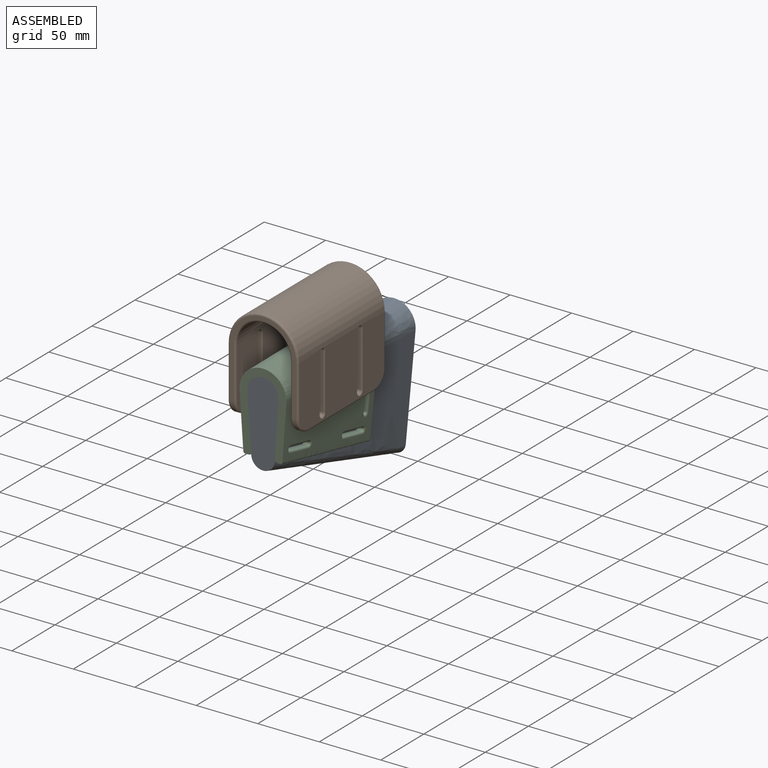
[diagram: assembled view]
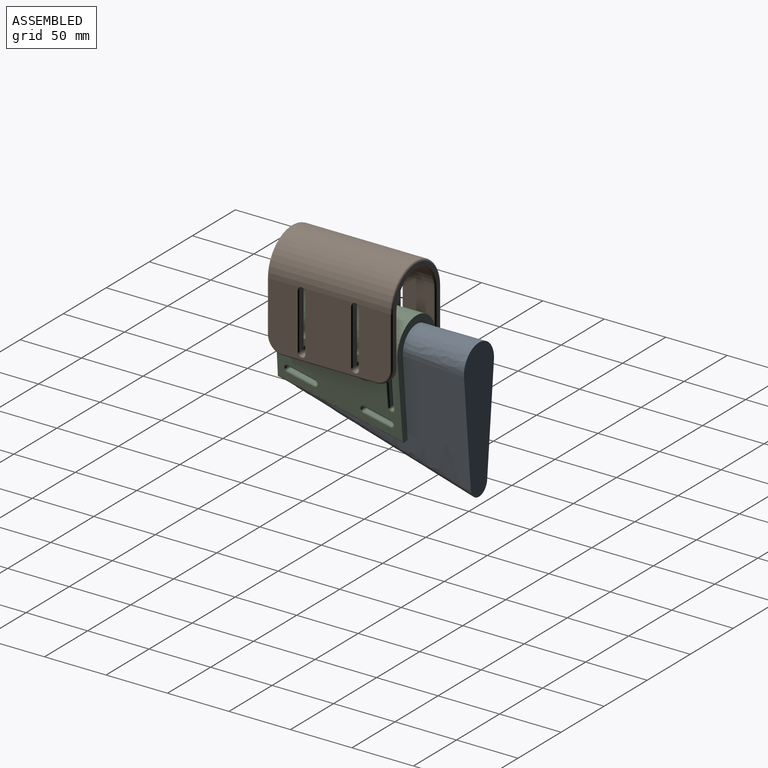
[diagram: assembled view, second angle]
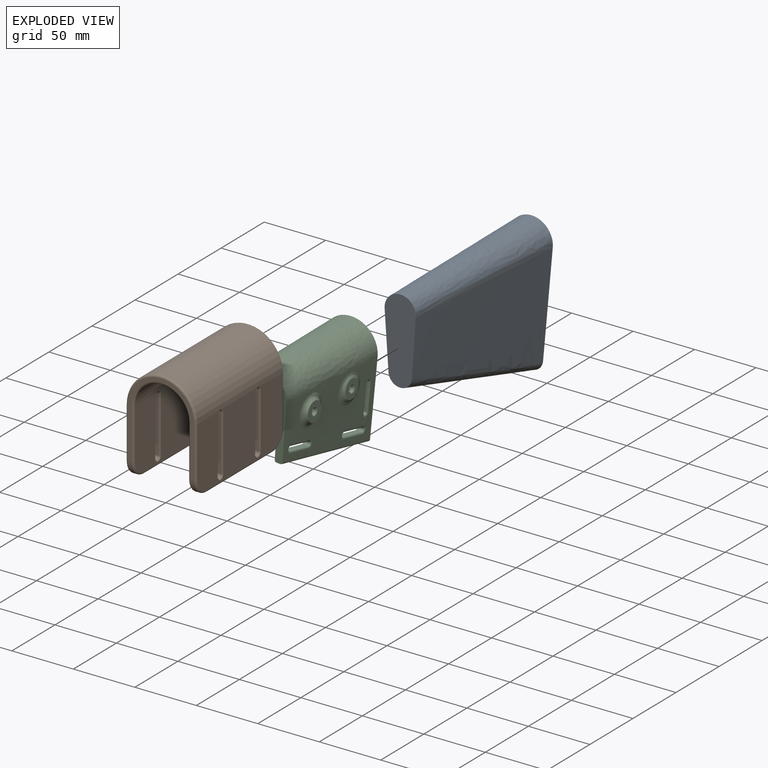
[diagram: exploded view]
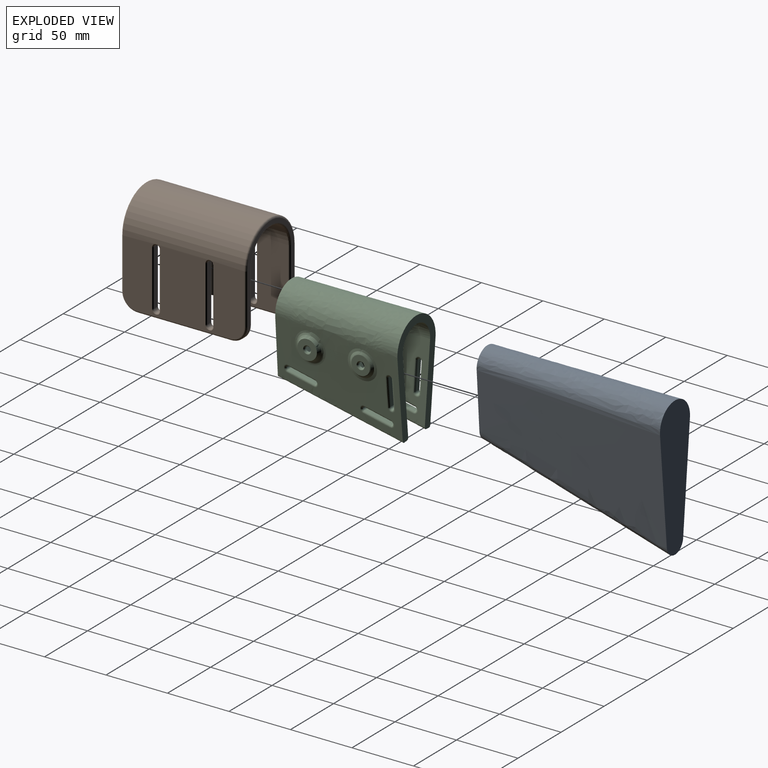
[diagram: exploded view, second angle]
ASSEMBLY  parts=3 mates=2
PART A: 3 faces, bbox 36.7x154.1x115.1 mm
  f0: plane 114.36x36mm, normal (0,1,0), area 2962mm2, adj f2
  f1: plane 70.31x27.18mm, normal (0,-1,0), area 1428.5mm2, adj f2
  f2: bspline ~152.4x113.35mm, area 32182.1mm2, adj f0,f1
PART B: 102 faces, bbox 61.9x103.7x86 mm
  f0: plane 98.43x52.39mm, normal (1,0,0), area 4456.8mm2, adj f1,f43,f45,f47,f49,f51,f54,f55
  f1: cylinder r=28.57mm len=98.43mm, axis (0,1,0), area 8826.8mm2, adj f0,f2,f42,f53,f59,f71,f87,f99
  f2: plane 98.43x52.39mm, normal (-1,0,0), area 4456.8mm2, adj f1,f44,f46,f48,f50,f52,f84,f85
  f3: plane 76.2x3.18mm, normal (0,0,-1), area 241.9mm2, adj f26,f28,f33,f48
  f4: plane 98.43x52.39mm, normal (1,0,0), area 4456.8mm2, adj f5,f30,f31,f33,f35,f37,f78,f79
  f5: cylinder r=22.23mm len=98.43mm, axis (0,1,0), area 6863.8mm2, adj f4,f6,f32,f39,f63,f75,f83,f95
  f6: plane 98.43x52.39mm, normal (-1,0,0), area 4456.8mm2, adj f5,f34,f36,f38,f40,f41,f60,f61
  f7: plane 76.2x3.18mm, normal (0,0,-1), area 241.9mm2, adj f27,f29,f38,f47
  f8: plane 68.26x53.98mm, normal (0,-1,0), area 515.4mm2, adj f28,f29,f37,f39,f41,f51,f52,f53
  f9: plane 68.26x53.98mm, normal (0,1,0), area 515.4mm2, adj f26,f27,f30,f32,f34,f42,f43,f44
  f10: plane 45.15x4.83mm, normal (0,-1,0), area 217.9mm2, adj f11,f13,f67,f72
  f11: cylinder r=2.48mm len=4.95mm, axis (1,0,0), area 37.5mm2, adj f10,f12,f66,f74
  f12: plane 45.15x4.83mm, normal (0,1,0), area 217.9mm2, adj f11,f13,f68,f76
  f13: cylinder r=2.48mm len=4.95mm, axis (1,0,0), area 37.5mm2, adj f10,f12,f69,f70,f71,f73,f75,f77
  f14: plane 45.15x4.83mm, normal (0,-1,0), area 217.9mm2, adj f15,f17,f55,f60
  f15: cylinder r=2.48mm len=4.95mm, axis (1,0,0), area 37.5mm2, adj f14,f16,f54,f62
  f16: plane 45.15x4.83mm, normal (0,1,0), area 217.9mm2, adj f15,f17,f56,f64
  f17: cylinder r=2.48mm len=4.95mm, axis (1,0,0), area 37.5mm2, adj f14,f16,f57,f58,f59,f61,f63,f65
  f18: cylinder r=2.48mm len=4.95mm, axis (1,0,0), area 37.5mm2, adj f19,f21,f93,f94,f95,f97,f99,f101
  f19: plane 45.15x4.83mm, normal (0,1,0), area 217.9mm2, adj f18,f20,f92,f100
  f20: cylinder r=2.48mm len=4.95mm, axis (1,0,0), area 37.5mm2, adj f19,f21,f90,f98
  f21: plane 45.15x4.83mm, normal (0,-1,0), area 217.9mm2, adj f18,f20,f91,f96
  f22: cylinder r=2.48mm len=4.95mm, axis (1,0,0), area 37.5mm2, adj f23,f25,f81,f82,f83,f85,f87,f89
  f23: plane 45.15x4.83mm, normal (0,1,0), area 217.9mm2, adj f22,f24,f80,f88
  f24: cylinder r=2.48mm len=4.95mm, axis (1,0,0), area 37.5mm2, adj f23,f25,f78,f86
  f25: plane 45.15x4.83mm, normal (0,-1,0), area 217.9mm2, adj f22,f24,f79,f84
  f26: cylinder r=12.7mm len=12.7mm, axis (1,0,0), area 63.3mm2, adj f3,f9,f31,f46
  f27: cylinder r=12.7mm len=12.7mm, axis (1,0,0), area 63.3mm2, adj f7,f9,f36,f45
  f28: cylinder r=12.7mm len=12.7mm, axis (-1,0,0), area 63.3mm2, adj f3,f8,f35,f50
  f29: cylinder r=12.7mm len=12.7mm, axis (-1,0,0), area 63.3mm2, adj f7,f8,f40,f49
  f30: cylinder r=1.59mm len=41.28mm, axis (0,0,1), area 102.9mm2, adj f4,f9,f31,f32
  f31: torus R=11.11mm, axis (1,0,0), area 47.5mm2, adj f4,f26,f30,f33
  f32: torus R=23.81mm, axis (0,-1,0), area 178.6mm2, adj f5,f9,f30,f34
  f33: cylinder r=1.59mm len=76.2mm, axis (0,-1,0), area 190mm2, adj f3,f4,f31,f35
  f34: cylinder r=1.59mm len=41.28mm, axis (0,0,-1), area 102.9mm2, adj f6,f9,f32,f36
  f35: torus R=11.11mm, axis (1,0,0), area 47.5mm2, adj f4,f28,f33,f37
  f36: torus R=11.11mm, axis (1,0,0), area 47.5mm2, adj f6,f27,f34,f38
  f37: cylinder r=1.59mm len=41.28mm, axis (0,0,-1), area 102.9mm2, adj f4,f8,f35,f39
  f38: cylinder r=1.59mm len=76.2mm, axis (0,1,0), area 190mm2, adj f6,f7,f36,f40
  f39: torus R=23.81mm, axis (0,-1,0), area 178.6mm2, adj f5,f8,f37,f41
  f40: torus R=11.11mm, axis (1,0,0), area 47.5mm2, adj f6,f29,f38,f41
  f41: cylinder r=1.59mm len=41.28mm, axis (0,0,1), area 102.9mm2, adj f6,f8,f39,f40
  f42: torus R=26.99mm, axis (0,-1,0), area 219.3mm2, adj f1,f9,f43,f44
  f43: cylinder r=1.59mm len=41.28mm, axis (0,0,1), area 102.9mm2, adj f0,f9,f42,f45
  f44: cylinder r=1.59mm len=41.28mm, axis (0,0,-1), area 102.9mm2, adj f2,f9,f42,f46
  f45: torus R=11.11mm, axis (1,0,0), area 47.5mm2, adj f0,f27,f43,f47
  f46: torus R=11.11mm, axis (1,0,0), area 47.5mm2, adj f2,f26,f44,f48
  f47: cylinder r=1.59mm len=76.2mm, axis (0,-1,0), area 190mm2, adj f0,f7,f45,f49
  f48: cylinder r=1.59mm len=76.2mm, axis (0,1,0), area 190mm2, adj f2,f3,f46,f50
  f49: torus R=11.11mm, axis (1,0,0), area 47.5mm2, adj f0,f29,f47,f51
  f50: torus R=11.11mm, axis (1,0,0), area 47.5mm2, adj f2,f28,f48,f52
  f51: cylinder r=1.59mm len=41.28mm, axis (0,0,-1), area 102.9mm2, adj f0,f8,f49,f53
  f52: cylinder r=1.59mm len=41.28mm, axis (0,0,1), area 102.9mm2, adj f2,f8,f50,f53
  f53: torus R=26.99mm, axis (0,-1,0), area 219.3mm2, adj f1,f8,f51,f52
  f54: cone r=2.48mm half-angle=45deg, axis (1,0,0), area 9.7mm2, adj f0,f15,f55,f56
  f55: plane 45.15x0.76mm, normal (0.71,-0.71,0), area 48.7mm2, adj f0,f14,f54,f57
  f56: plane 45.15x0.76mm, normal (0.71,0.71,0), area 48.7mm2, adj f0,f16,f54,f58
  f57: cone r=2.48mm half-angle=45deg, axis (1,0,0), area 2.7mm2, adj f0,f17,f55,f59
  f58: cone r=2.48mm half-angle=45deg, axis (1,0,0), area 2.7mm2, adj f0,f17,f56,f59
  f59: bspline ~4.17x1.37mm, area 4.4mm2, adj f1,f17,f57,f58
  f60: plane 45.15x0.76mm, normal (-0.71,-0.71,0), area 48.7mm2, adj f6,f14,f61,f62
  f61: cone r=3.24mm half-angle=45deg, axis (-1,0,0), area 2.7mm2, adj f6,f17,f60,f63
  f62: cone r=3.24mm half-angle=45deg, axis (-1,0,0), area 9.7mm2, adj f6,f15,f60,f64
  f63: bspline ~4.17x1.32mm, area 4.3mm2, adj f5,f17,f61,f65
  f64: plane 45.15x0.76mm, normal (-0.71,0.71,0), area 48.7mm2, adj f6,f16,f62,f65
  f65: cone r=3.24mm half-angle=45deg, axis (-1,0,0), area 2.7mm2, adj f6,f17,f63,f64
  f66: cone r=2.48mm half-angle=45deg, axis (1,0,0), area 9.7mm2, adj f0,f11,f67,f68
  f67: plane 45.15x0.76mm, normal (0.71,-0.71,0), area 48.7mm2, adj f0,f10,f66,f69
  f68: plane 45.15x0.76mm, normal (0.71,0.71,0), area 48.7mm2, adj f0,f12,f66,f70
  f69: cone r=2.48mm half-angle=45deg, axis (1,0,0), area 2.7mm2, adj f0,f13,f67,f71
  f70: cone r=2.48mm half-angle=45deg, axis (1,0,0), area 2.7mm2, adj f0,f13,f68,f71
  f71: bspline ~4.17x1.37mm, area 4.4mm2, adj f1,f13,f69,f70
  f72: plane 45.15x0.76mm, normal (-0.71,-0.71,0), area 48.7mm2, adj f6,f10,f73,f74
  f73: cone r=3.24mm half-angle=45deg, axis (-1,0,0), area 2.7mm2, adj f6,f13,f72,f75
  f74: cone r=3.24mm half-angle=45deg, axis (-1,0,0), area 9.7mm2, adj f6,f11,f72,f76
  f75: bspline ~4.17x1.32mm, area 4.3mm2, adj f5,f13,f73,f77
  f76: plane 45.15x0.76mm, normal (-0.71,0.71,0), area 48.7mm2, adj f6,f12,f74,f77
  f77: cone r=3.24mm half-angle=45deg, axis (-1,0,0), area 2.7mm2, adj f6,f13,f75,f76
  f78: cone r=2.48mm half-angle=45deg, axis (1,0,0), area 9.7mm2, adj f4,f24,f79,f80
  f79: plane 45.15x0.76mm, normal (0.71,-0.71,0), area 48.7mm2, adj f4,f25,f78,f81
  f80: plane 45.15x0.76mm, normal (0.71,0.71,0), area 48.7mm2, adj f4,f23,f78,f82
  f81: cone r=2.48mm half-angle=45deg, axis (1,0,0), area 2.7mm2, adj f4,f22,f79,f83
  f82: cone r=2.48mm half-angle=45deg, axis (1,0,0), area 2.7mm2, adj f4,f22,f80,f83
  f83: bspline ~4.17x1.32mm, area 4.3mm2, adj f5,f22,f81,f82
  f84: plane 45.15x0.76mm, normal (-0.71,-0.71,0), area 48.7mm2, adj f2,f25,f85,f86
  f85: cone r=3.24mm half-angle=45deg, axis (-1,0,0), area 2.7mm2, adj f2,f22,f84,f87
  f86: cone r=3.24mm half-angle=45deg, axis (-1,0,0), area 9.7mm2, adj f2,f24,f84,f88
  f87: bspline ~4.17x1.37mm, area 4.4mm2, adj f1,f22,f85,f89
  f88: plane 45.15x0.76mm, normal (-0.71,0.71,0), area 48.7mm2, adj f2,f23,f86,f89
  f89: cone r=3.24mm half-angle=45deg, axis (-1,0,0), area 2.7mm2, adj f2,f22,f87,f88
  f90: cone r=2.48mm half-angle=45deg, axis (1,0,0), area 9.7mm2, adj f4,f20,f91,f92
  f91: plane 45.15x0.76mm, normal (0.71,-0.71,0), area 48.7mm2, adj f4,f21,f90,f93
  f92: plane 45.15x0.76mm, normal (0.71,0.71,0), area 48.7mm2, adj f4,f19,f90,f94
  f93: cone r=2.48mm half-angle=45deg, axis (1,0,0), area 2.7mm2, adj f4,f18,f91,f95
  f94: cone r=2.48mm half-angle=45deg, axis (1,0,0), area 2.7mm2, adj f4,f18,f92,f95
  f95: bspline ~4.17x1.32mm, area 4.3mm2, adj f5,f18,f93,f94
  f96: plane 45.15x0.76mm, normal (-0.71,-0.71,0), area 48.7mm2, adj f2,f21,f97,f98
  f97: cone r=3.24mm half-angle=45deg, axis (-1,0,0), area 2.7mm2, adj f2,f18,f96,f99
  f98: cone r=3.24mm half-angle=45deg, axis (-1,0,0), area 9.7mm2, adj f2,f20,f96,f100
  f99: bspline ~4.17x1.37mm, area 4.4mm2, adj f1,f18,f97,f101
  f100: plane 45.15x0.76mm, normal (-0.71,0.71,0), area 48.7mm2, adj f2,f19,f98,f101
  f101: cone r=3.24mm half-angle=45deg, axis (-1,0,0), area 2.7mm2, adj f2,f18,f99,f100
PART C: 137 faces, bbox 45.8x173.3x89.6 mm
  f0: bspline ~101.6x88.05mm, area 30560.5mm2, adj f1,f15,f16,f29,f30,f35,f36,f37
  f1: cylinder r=7.94mm len=15.88mm, axis (1,0,0), area 0mm2, adj f0,f2
  f2: plane 15.88x15.88mm, normal (-1,0,0), area 119.4mm2, adj f1,f3,f10,f11,f12,f13,f14,f15
  f3: plane 4.76x4.7mm, normal (0,0.87,-0.5), area 25.8mm2, adj f2,f4,f10,f14
  f4: plane 11x9.53mm, normal (-1,0,0), area 46.3mm2, adj f3,f5,f10,f11,f12,f13,f14
  f5: cone r=3.21mm half-angle=45deg, axis (-1,0,0), area 19.8mm2, adj f4,f6
  f6: cylinder r=2.41mm len=4.83mm, axis (1,0,0), area 24.1mm2, adj f5,f7
  f7: cone r=2.41mm half-angle=45deg, axis (1,0,0), area 19.8mm2, adj f6,f8
  f8: plane 15.11x15.1mm, normal (1,0,0), area 146mm2, adj f7,f9
  f9: bspline ~16.3x16.24mm, area 33.2mm2, adj f8,f110
  f10: plane 5.5x4.7mm, normal (0,0,-1), area 25.8mm2, adj f2,f3,f4,f11
  f11: plane 4.76x4.7mm, normal (0,-0.87,-0.5), area 25.8mm2, adj f2,f4,f10,f12
  f12: plane 4.76x4.7mm, normal (0,-0.87,0.5), area 25.8mm2, adj f2,f4,f11,f13
  f13: plane 5.5x4.7mm, normal (0,0,1), area 25.8mm2, adj f2,f4,f12,f14
  f14: plane 4.76x4.7mm, normal (0,0.87,0.5), area 25.8mm2, adj f2,f3,f4,f13
  f15: cylinder r=7.94mm len=3.83mm, axis (-1,0,0), area 0mm2, adj f0,f2
  f16: cylinder r=7.94mm len=15.88mm, axis (1,0,0), area 0mm2, adj f0,f17
  f17: plane 15.88x15.88mm, normal (-1,0,0), area 119.4mm2, adj f16,f18,f24,f25,f26,f27,f28,f29
  f18: plane 6.1x4.76mm, normal (0,0.87,0.5), area 33.5mm2, adj f17,f19,f24,f28
  f19: plane 11x9.53mm, normal (-1,0,0), area 46.3mm2, adj f18,f20,f24,f25,f26,f27,f28
  f20: cone r=3.21mm half-angle=45deg, axis (-1,0,0), area 19.8mm2, adj f19,f21
  f21: cylinder r=2.41mm len=4.83mm, axis (1,0,0), area 24.1mm2, adj f20,f22
  f22: cone r=2.41mm half-angle=45deg, axis (1,0,0), area 19.8mm2, adj f21,f23
  f23: plane 16.37x16.37mm, normal (1,0,0), area 165.6mm2, adj f22,f108
  f24: plane 6.1x4.76mm, normal (0,0.87,-0.5), area 33.5mm2, adj f17,f18,f19,f25
  f25: plane 6.1x5.5mm, normal (0,0,-1), area 33.5mm2, adj f17,f19,f24,f26
  f26: plane 6.1x4.76mm, normal (0,-0.87,-0.5), area 33.5mm2, adj f17,f19,f25,f27
  f27: plane 6.1x4.76mm, normal (0,-0.87,0.5), area 33.5mm2, adj f17,f19,f26,f28
  f28: plane 6.1x5.5mm, normal (0,0,1), area 33.5mm2, adj f17,f18,f19,f27
  f29: cylinder r=7.94mm len=4.44mm, axis (-1,0,0), area 0mm2, adj f0,f17
  f30: bspline ~69.59x16.52mm, area 55.8mm2, adj f0,f31,f35,f37
  f31: plane 21.73x4.68mm, normal (0,0.21,0.98), area 73.6mm2, adj f30,f32,f34,f38
  f32: cylinder r=1.59mm len=3.77mm, axis (-1,0,0), area 16.5mm2, adj f31,f33,f37,f39
  f33: plane 21.73x4.68mm, normal (0,-0.21,-0.98), area 73.6mm2, adj f32,f34,f36,f40
  f34: cylinder r=1.59mm len=3.82mm, axis (-1,0,0), area 16.5mm2, adj f31,f33,f35,f41
  f35: bspline ~6.23x4.43mm, area 16.1mm2, adj f0,f30,f34,f36
  f36: bspline ~51.39x12.39mm, area 50.5mm2, adj f0,f33,f35,f37
  f37: bspline ~6.23x4.43mm, area 16.1mm2, adj f0,f30,f32,f36
  f38: bspline ~69.77x16.31mm, area 50.6mm2, adj f0,f31,f39,f41
  f39: bspline ~6.23x4.43mm, area 16.1mm2, adj f0,f32,f38,f40
  f40: bspline ~69.73x16.52mm, area 55.9mm2, adj f0,f33,f39,f41
  f41: bspline ~6.23x4.43mm, area 16.2mm2, adj f0,f34,f38,f40
  f42: bspline ~72.39x16.85mm, area 50mm2, adj f0,f43,f47,f49
  f43: plane 21.73x4.68mm, normal (0,0.21,0.98), area 73.7mm2, adj f42,f44,f46,f50
  f44: cylinder r=1.59mm len=3.93mm, axis (-1,0,0), area 16.6mm2, adj f43,f45,f49,f51
  f45: plane 21.73x4.68mm, normal (0,-0.21,-0.98), area 73.7mm2, adj f44,f46,f48,f52
  f46: cylinder r=1.59mm len=3.9mm, axis (-1,0,0), area 16.6mm2, adj f43,f45,f47,f53
  f47: bspline ~6.23x4.43mm, area 16.2mm2, adj f0,f42,f46,f48
  f48: bspline ~74.01x17.47mm, area 56.5mm2, adj f0,f45,f47,f49
  f49: bspline ~6.23x4.43mm, area 16.2mm2, adj f0,f42,f44,f48
  f50: bspline ~72.3x17.13mm, area 56.4mm2, adj f0,f43,f51,f53
  f51: bspline ~6.23x4.43mm, area 16.1mm2, adj f0,f44,f50,f52
  f52: bspline ~73.93x17.21mm, area 49.9mm2, adj f0,f45,f51,f53
  f53: bspline ~6.23x4.43mm, area 16.2mm2, adj f0,f46,f50,f52
  f54: bspline ~108.99x25.03mm, area 56.4mm2, adj f0,f55,f59,f61
  f55: plane 21.73x4.68mm, normal (0,0.21,0.98), area 73.7mm2, adj f54,f56,f58,f62
  f56: cylinder r=1.59mm len=3.93mm, axis (-1,0,0), area 16.6mm2, adj f55,f57,f61,f63
  f57: plane 21.73x4.68mm, normal (0,-0.21,-0.98), area 73.7mm2, adj f56,f58,f60,f64
  f58: cylinder r=1.59mm len=3.9mm, axis (-1,0,0), area 16.6mm2, adj f55,f57,f59,f65
  f59: bspline ~6.23x3.94mm, area 16.2mm2, adj f0,f54,f58,f60
  f60: bspline ~108.93x24.75mm, area 49.9mm2, adj f0,f57,f59,f61
  f61: bspline ~6.23x4.43mm, area 16.1mm2, adj f0,f54,f56,f60
  f62: bspline ~52.55x12.59mm, area 50mm2, adj f0,f55,f63,f65
  f63: bspline ~6.23x4.43mm, area 16.2mm2, adj f0,f56,f62,f64
  f64: bspline ~81.57x19.09mm, area 56.5mm2, adj f0,f57,f63,f65
  f65: bspline ~6.2x4.43mm, area 16.1mm2, adj f0,f58,f62,f64
  f66: bspline ~64.61x15.2mm, area 50.6mm2, adj f0,f67,f71,f73
  f67: plane 21.73x4.68mm, normal (0,0.21,0.98), area 73.6mm2, adj f66,f68,f70,f74
  f68: cylinder r=1.59mm len=3.77mm, axis (-1,0,0), area 16.5mm2, adj f67,f69,f73,f75
  f69: plane 21.73x4.68mm, normal (0,-0.21,-0.98), area 73.6mm2, adj f68,f70,f72,f76
  f70: cylinder r=1.59mm len=3.82mm, axis (-1,0,0), area 16.5mm2, adj f67,f69,f71,f77
  f71: bspline ~6.23x4.43mm, area 16.2mm2, adj f0,f66,f70,f72
  f72: bspline ~69.22x16.39mm, area 55.9mm2, adj f0,f69,f71,f73
  f73: bspline ~6.23x4.43mm, area 16.1mm2, adj f0,f66,f68,f72
  f74: bspline ~108.98x25.01mm, area 55.8mm2, adj f0,f67,f75,f77
  f75: bspline ~6.23x4.43mm, area 16.1mm2, adj f0,f68,f74,f76
  f76: bspline ~108.93x24.79mm, area 50.5mm2, adj f0,f69,f75,f77
  f77: bspline ~6.23x4.43mm, area 16.1mm2, adj f0,f70,f74,f76
  f78: cylinder r=7.94mm len=15.88mm, axis (1,0,0), area 0mm2, adj f0,f79
  f79: plane 16.05x16.05mm, normal (1,0,0), area 119.4mm2, adj f78,f80,f86,f87,f88,f89,f90,f91
  f80: plane 6.1x4.76mm, normal (0,-0.87,-0.5), area 33.5mm2, adj f79,f81,f86,f90
  f81: plane 11x9.53mm, normal (1,0,0), area 46.3mm2, adj f80,f82,f86,f87,f88,f89,f90
  f82: cone r=2.41mm half-angle=45deg, axis (1,0,0), area 19.8mm2, adj f81,f83
  f83: cylinder r=2.41mm len=4.83mm, axis (1,0,0), area 24.1mm2, adj f82,f84
  f84: cone r=3.21mm half-angle=45deg, axis (-1,0,0), area 19.8mm2, adj f83,f85
  f85: plane 16.37x16.37mm, normal (-1,0,0), area 165.6mm2, adj f84,f107
  f86: plane 6.1x5.5mm, normal (0,0,-1), area 33.5mm2, adj f79,f80,f81,f87
  f87: plane 6.1x4.76mm, normal (0,0.87,-0.5), area 33.5mm2, adj f79,f81,f86,f88
  f88: plane 6.1x4.76mm, normal (0,0.87,0.5), area 33.5mm2, adj f79,f81,f87,f89
  f89: plane 6.1x5.5mm, normal (0,0,1), area 33.5mm2, adj f79,f81,f88,f90
  f90: plane 6.1x4.76mm, normal (0,-0.87,0.5), area 33.5mm2, adj f79,f80,f81,f89
  f91: cylinder r=7.94mm len=4.44mm, axis (-1,0,0), area 0mm2, adj f0,f79
  f92: cylinder r=7.94mm len=15.88mm, axis (1,0,0), area 0mm2, adj f0,f93
  f93: plane 15.88x15.88mm, normal (1,0,0), area 119.4mm2, adj f92,f94,f101,f102,f103,f104,f105,f106
  f94: plane 4.76x4.7mm, normal (0,-0.87,0.5), area 25.8mm2, adj f93,f95,f101,f105
  f95: plane 11x9.53mm, normal (1,0,0), area 46.3mm2, adj f94,f96,f101,f102,f103,f104,f105
  f96: cone r=2.41mm half-angle=45deg, axis (1,0,0), area 19.8mm2, adj f95,f97
  f97: cylinder r=2.41mm len=4.83mm, axis (1,0,0), area 24.1mm2, adj f96,f98
  f98: cone r=3.21mm half-angle=45deg, axis (-1,0,0), area 19.8mm2, adj f97,f99
  f99: plane 15.11x15.1mm, normal (-1,0,0), area 146.1mm2, adj f98,f100
  f100: bspline ~16.3x16.25mm, area 33.1mm2, adj f99,f109
  f101: plane 4.76x4.7mm, normal (0,-0.87,-0.5), area 25.8mm2, adj f93,f94,f95,f102
  f102: plane 5.5x4.7mm, normal (0,0,-1), area 25.8mm2, adj f93,f95,f101,f103
  f103: plane 4.76x4.7mm, normal (0,0.87,-0.5), area 25.8mm2, adj f93,f95,f102,f104
  f104: plane 4.76x4.7mm, normal (0,0.87,0.5), area 25.8mm2, adj f93,f95,f103,f105
  f105: plane 5.5x4.7mm, normal (0,0,1), area 25.8mm2, adj f93,f94,f95,f104
  f106: cylinder r=7.94mm len=3.83mm, axis (-1,0,0), area 0mm2, adj f0,f93
  f107: bspline ~25.52x25.3mm, area 400mm2, adj f0,f85
  f108: bspline ~25.52x25.31mm, area 399.9mm2, adj f0,f23
  f109: bspline ~24.27x23.92mm, area 286.5mm2, adj f0,f100
  f110: bspline ~24.27x23.92mm, area 286.5mm2, adj f0,f9
  f111: bspline ~47.25x6.14mm, area 52.5mm2, adj f0,f112,f116,f118
  f112: plane 22.23x5.51mm, normal (0,-1,0), area 73.8mm2, adj f111,f113,f115,f119
  f113: cylinder r=1.59mm len=3.7mm, axis (1,0,0), area 16.5mm2, adj f112,f114,f118,f120
  f114: plane 22.23x5.48mm, normal (0,1,0), area 73.7mm2, adj f113,f115,f117,f121
  f115: cylinder r=1.59mm len=3.72mm, axis (-1,0,0), area 16.6mm2, adj f112,f114,f116,f122
  f116: bspline ~6.22x3.81mm, area 15.7mm2, adj f0,f111,f115,f117
  f117: bspline ~40.66x5.49mm, area 54.4mm2, adj f0,f114,f116,f118
  f118: bspline ~6.22x3.35mm, area 16.6mm2, adj f0,f111,f113,f117
  f119: bspline ~38.49x5.32mm, area 54.4mm2, adj f0,f112,f120,f122
  f120: bspline ~6.22x3.81mm, area 15.7mm2, adj f0,f113,f119,f121
  f121: bspline ~37.26x5.11mm, area 52.5mm2, adj f0,f114,f120,f122
  f122: bspline ~6.22x3.81mm, area 16.6mm2, adj f0,f115,f119,f121
  f123: bspline ~42.78x5.7mm, area 54.4mm2, adj f0,f124,f128,f130
  f124: plane 22.23x5.48mm, normal (0,1,0), area 73.7mm2, adj f123,f125,f127,f131
  f125: cylinder r=1.59mm len=3.7mm, axis (1,0,0), area 16.5mm2, adj f124,f126,f130,f132
  f126: plane 22.23x5.51mm, normal (0,-1,0), area 73.8mm2, adj f125,f127,f129,f133
  f127: cylinder r=1.59mm len=3.72mm, axis (-1,0,0), area 16.6mm2, adj f124,f126,f128,f134
  f128: bspline ~6.22x3.81mm, area 15.7mm2, adj f0,f123,f127,f129
  f129: bspline ~42.73x5.7mm, area 52.5mm2, adj f0,f126,f128,f130
  f130: bspline ~6.22x3.81mm, area 16.6mm2, adj f0,f123,f125,f129
  f131: bspline ~41.43x5.52mm, area 52.5mm2, adj f0,f124,f132,f134
  f132: bspline ~6.22x3.81mm, area 15.7mm2, adj f0,f125,f131,f133
  f133: bspline ~41.41x5.61mm, area 54.4mm2, adj f0,f126,f132,f134
  f134: bspline ~6.22x3.81mm, area 16.6mm2, adj f0,f127,f131,f133
  f135: plane 67.71x39.48mm, normal (0,-1,0), area 915.7mm2, adj f0
  f136: plane 88.15x44.45mm, normal (0,1,0), area 1599.7mm2, adj f0
PLACE A t=(-66.74,-3.49,-23.32)mm fixed
PLACE B t=(-66.74,-54.29,11.61)mm
PLACE C t=(-66.74,-3.49,-23.32)mm
MATE fastened C.f135 <-> A.f1  axis (0,-1,0) through (-66.74,-155.89,-5.86)mm
MATE slider C.f16 <-> B.f15  axis (1,0,0) through (-44.52,-127.65,-36.02)mm
